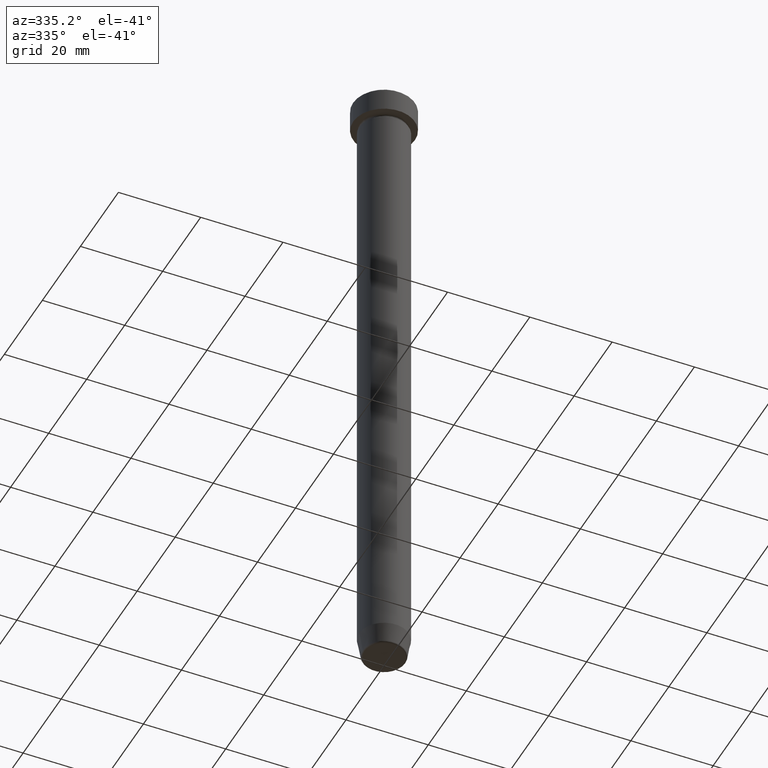
[diagram: clean part render]
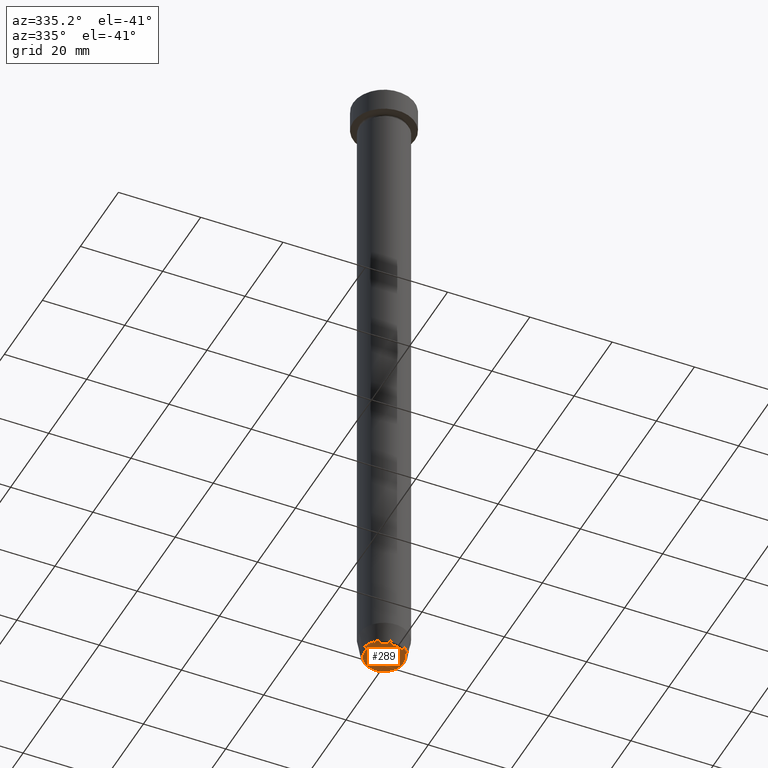
[diagram: same view with one face highlighted and labeled with its STEP entity id]
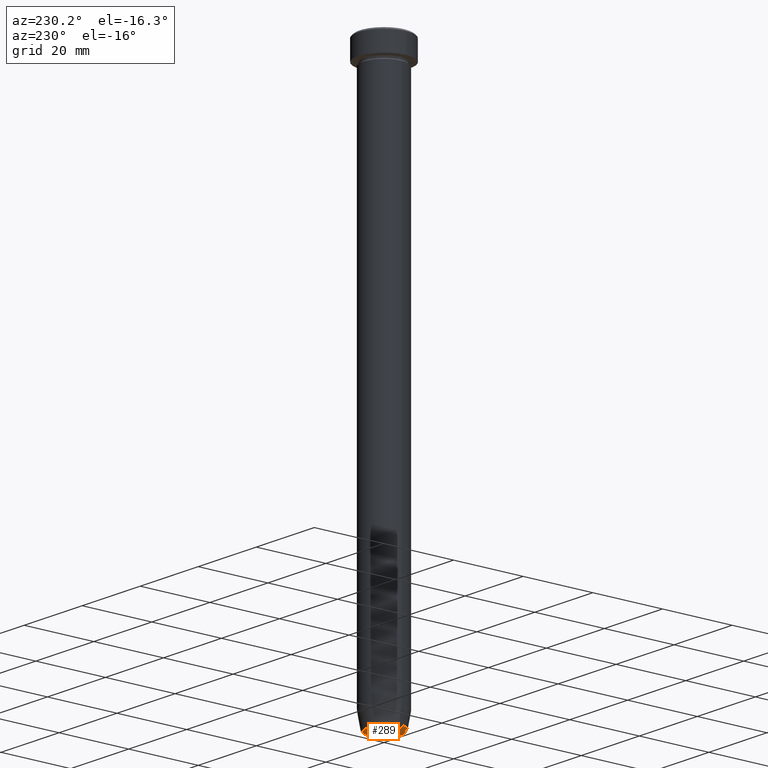
[diagram: same view with one face highlighted and labeled with its STEP entity id]
A machine part, auxiliary view. The second image highlights one B-rep face of the part: STEP entity #289.
A second angle (auxiliary view) of the same face is appended — the face is thin or edge-on in the first view.
In plain terms, the highlighted planar face has unit normal (0, -0, 1).
Its self-contained STEP definition (entity closure, byte-faithful):
#1 = DIRECTION ( 'NONE',  ( 0.000000000000000000, -0.000000000000000000, 1.000000000000000000 ) ) ;
#11 = ORIENTED_EDGE ( 'NONE', *, *, #246, .T. ) ;
#18 = EDGE_CURVE ( 'NONE', #448, #388, #242, .T. ) ;
#41 = DIRECTION ( 'NONE',  ( 1.000000000000000000, 0.000000000000000000, 0.000000000000000000 ) ) ;
#90 = DIRECTION ( 'NONE',  ( 0.000000000000000000, 0.000000000000000000, -1.000000000000000000 ) ) ;
#99 = CARTESIAN_POINT ( 'NONE',  ( 0.000000000000000000, 0.000000000000000000, -159.9999999999999716 ) ) ;
#160 = AXIS2_PLACEMENT_3D ( 'NONE', #99, #90, #365 ) ;
#197 = CARTESIAN_POINT ( 'NONE',  ( 4.698815280869035327, 0.000000000000000000, -159.9999999999999716 ) ) ;
#222 = FACE_OUTER_BOUND ( 'NONE', #399, .T. ) ;
#242 = CIRCLE ( 'NONE', #570, 4.698815280869035327 ) ;
#246 = EDGE_CURVE ( 'NONE', #388, #448, #427, .T. ) ;
#276 = DIRECTION ( 'NONE',  ( 0.000000000000000000, 0.000000000000000000, -1.000000000000000000 ) ) ;
#289 = ADVANCED_FACE ( 'NONE', ( #222 ), #407, .F. ) ;
#318 = CARTESIAN_POINT ( 'NONE',  ( 0.000000000000000000, 1.347111479062088365E-14, -159.9999999999999716 ) ) ;
#336 = CARTESIAN_POINT ( 'NONE',  ( -4.698815280869035327, 6.055899509126411236E-16, -159.9999999999999716 ) ) ;
#365 = DIRECTION ( 'NONE',  ( 1.000000000000000000, 0.000000000000000000, 0.000000000000000000 ) ) ;
#388 = VERTEX_POINT ( 'NONE', #336 ) ;
#390 = AXIS2_PLACEMENT_3D ( 'NONE', #318, #1, #595 ) ;
#399 = EDGE_LOOP ( 'NONE', ( #507, #11 ) ) ;
#407 = PLANE ( 'NONE',  #390 ) ;
#427 = CIRCLE ( 'NONE', #160, 4.698815280869035327 ) ;
#448 = VERTEX_POINT ( 'NONE', #197 ) ;
#456 = CARTESIAN_POINT ( 'NONE',  ( 0.000000000000000000, 0.000000000000000000, -159.9999999999999716 ) ) ;
#507 = ORIENTED_EDGE ( 'NONE', *, *, #18, .T. ) ;
#570 = AXIS2_PLACEMENT_3D ( 'NONE', #456, #276, #41 ) ;
#595 = DIRECTION ( 'NONE',  ( 1.000000000000000000, 0.000000000000000000, 0.000000000000000000 ) ) ;